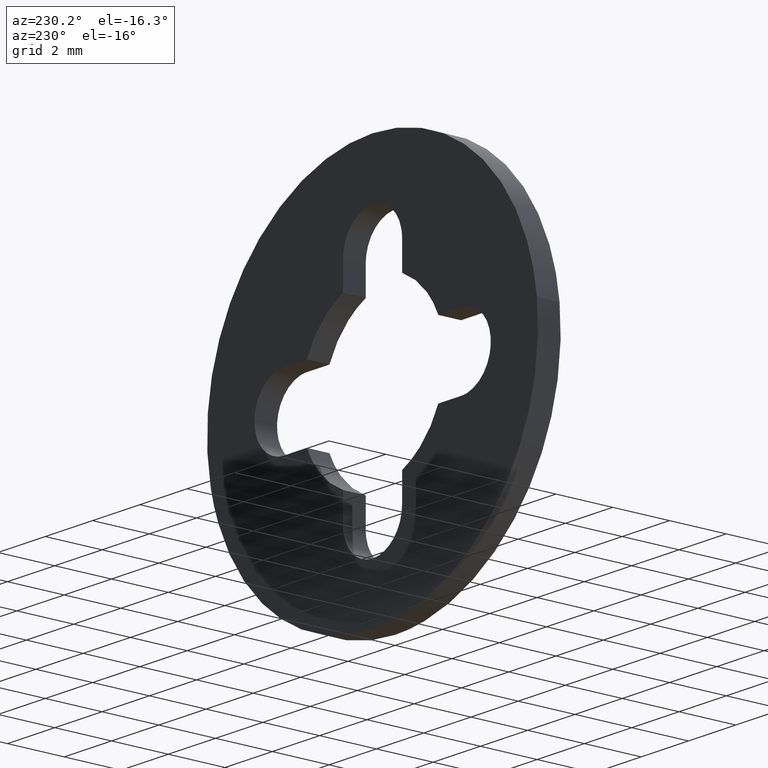
[diagram: clean part render]
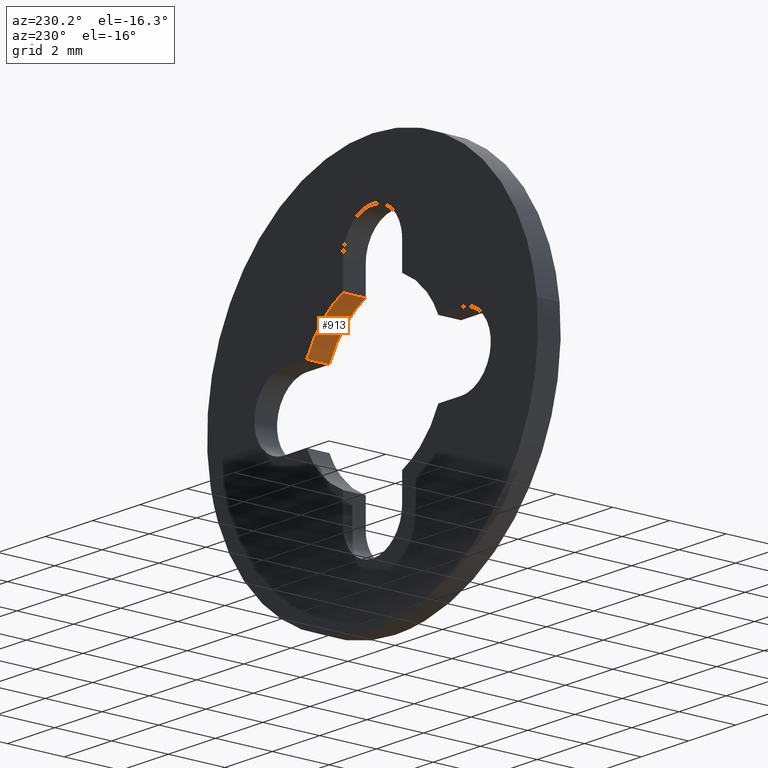
[diagram: same view with one face highlighted and labeled with its STEP entity id]
A machine part, auxiliary view. The second image highlights one B-rep face of the part: STEP entity #913.
In plain terms, the highlighted face is a freeform B-spline surface patch.
Its self-contained STEP definition (entity closure, byte-faithful):
#237=CARTESIAN_POINT('',(2.782085548648710,0.0,1.250000000000000));
#238=VERTEX_POINT('',#237);
#244=CARTESIAN_POINT('',(2.782085548648710,0.800000000000000,1.250000000000000));
#245=VERTEX_POINT('',#244);
#246=CARTESIAN_POINT('',(2.782085548648710,0.800000000000000,1.250000000000000));
#247=CARTESIAN_POINT('',(2.782085548648710,0.0,1.250000000000000));
#248=QUASI_UNIFORM_CURVE('',1,(#246,#247),.UNSPECIFIED.,.F.,.U.);
#249=EDGE_CURVE('',#245,#238,#248,.T.);
#846=CARTESIAN_POINT('',(1.250000000000000,0.0,2.782085548648710));
#847=VERTEX_POINT('',#846);
#854=CARTESIAN_POINT('',(1.250000000000000,0.800000000000023,2.782085548648710));
#855=VERTEX_POINT('',#854);
#861=CARTESIAN_POINT('',(1.250000000000000,0.800000000000023,2.782085548648710));
#862=CARTESIAN_POINT('',(1.250000000000000,0.0,2.782085548648710));
#863=QUASI_UNIFORM_CURVE('',1,(#861,#862),.UNSPECIFIED.,.F.,.U.);
#864=EDGE_CURVE('',#855,#847,#863,.T.);
#869=CARTESIAN_POINT('',(1.157610335336241,0.820000000000024,2.821779281149167));
#870=CARTESIAN_POINT('',(1.157610335336241,-0.020500000000001,2.821779281149167));
#871=CARTESIAN_POINT('',(2.341898987081582,0.820000000000024,2.335935192477741));
#872=CARTESIAN_POINT('',(2.341898987081582,-0.020500000000001,2.335935192477741));
#873=CARTESIAN_POINT('',(2.824721790038984,0.820000000000024,1.150411582382132));
#874=CARTESIAN_POINT('',(2.824721790038984,-0.020500000000001,1.150411582382132));
#882=(BOUNDED_SURFACE()B_SPLINE_SURFACE(1,2,((#869,#871,#873),(#870,#872,#874)),.UNSPECIFIED.,.F.,.F.,.U.)B_SPLINE_SURFACE_WITH_KNOTS((2,2),(3,3),(0.0,1.0),(0.0,2.456348212603611),.UNSPECIFIED.)GEOMETRIC_REPRESENTATION_ITEM()RATIONAL_B_SPLINE_SURFACE(((1.0,0.918097380520157,0.991375481329810),(1.0,0.918097380520157,0.991375481329810)))REPRESENTATION_ITEM('')SURFACE());
#883=CARTESIAN_POINT('',(2.782085548648711,0.0,1.250000000000000));
#884=CARTESIAN_POINT('',(2.307118707617101,0.0,2.307118707617100));
#885=CARTESIAN_POINT('',(1.250000000000002,0.0,2.782085548648710));
#893=(BOUNDED_CURVE()B_SPLINE_CURVE(2,(#883,#884,#885),.UNSPECIFIED.,.F.,.U.)CURVE()GEOMETRIC_REPRESENTATION_ITEM()QUASI_UNIFORM_CURVE()RATIONAL_B_SPLINE_CURVE((1.0,0.934791814352061,1.0))REPRESENTATION_ITEM(''));
#894=EDGE_CURVE('',#238,#847,#893,.T.);
#895=ORIENTED_EDGE('',*,*,#894,.T.);
#896=ORIENTED_EDGE('',*,*,#864,.F.);
#897=CARTESIAN_POINT('',(2.782085548648710,0.800000000000000,1.250000000000000));
#898=CARTESIAN_POINT('',(2.307118707617101,0.800000000000023,2.307118707617100));
#899=CARTESIAN_POINT('',(1.250000000000002,0.800000000000023,2.782085548648710));
#907=(BOUNDED_CURVE()B_SPLINE_CURVE(2,(#897,#898,#899),.UNSPECIFIED.,.F.,.U.)CURVE()GEOMETRIC_REPRESENTATION_ITEM()QUASI_UNIFORM_CURVE()RATIONAL_B_SPLINE_CURVE((1.0,0.934791814352061,1.0))REPRESENTATION_ITEM(''));
#908=EDGE_CURVE('',#245,#855,#907,.T.);
#909=ORIENTED_EDGE('',*,*,#908,.F.);
#910=ORIENTED_EDGE('',*,*,#249,.T.);
#911=EDGE_LOOP('',(#895,#896,#909,#910));
#912=FACE_OUTER_BOUND('',#911,.T.);
#913=ADVANCED_FACE('',(#912),#882,.F.);